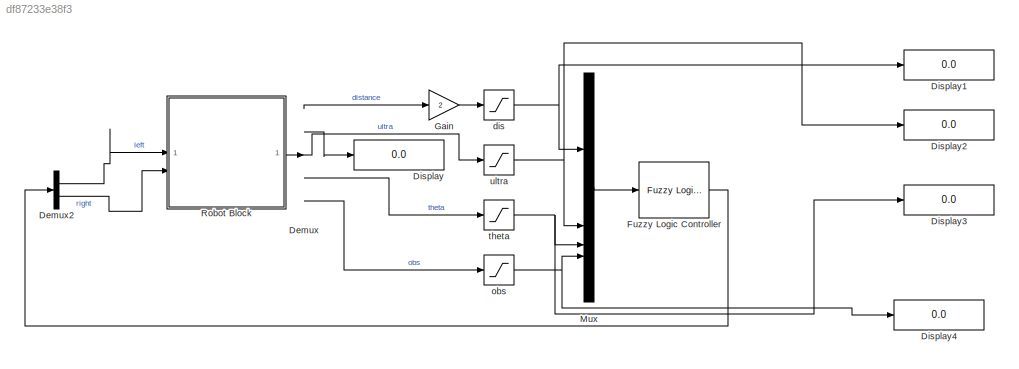
MODEL slx_df87233e38f3
KIND model
CONFIG AbsTol = auto
CONFIG EnableMultiTasking = off
CONFIG FixedStep = 0.050
CONFIG MaxStep = auto
CONFIG MinStep = auto
CONFIG RelTol = 1e-3
CONFIG SampleTimeConstraint = Unconstrained
CONFIG SolverName = ode45
CONFIG StartTime = 0.0
CONFIG StopTime = inf
WORKSPACE source: mxarray member
WORKSPACE Sig: Simulink.Signal (value not decoded)
WORKSPACE Var = 0
BLOCK [Demux] Demux
  Outputs = 5
BLOCK [Demux] Demux2
  Outputs = 2
BLOCK [Display] Display
  Decimation = 1
BLOCK [Display] Display1
  Decimation = 1
BLOCK [Display] Display2
  Decimation = 1
BLOCK [Display] Display3
  Decimation = 1
BLOCK [Display] Display4
  Decimation = 1
BLOCK [Reference] Fuzzy Logic Controller  REF=fuzblock/Fuzzy Logic   (lib defined in mdl_858b3b3e7478)
Controller
  SourceBlock = fuzblock/Fuzzy Logic \nController
  SourceType = Fuzzy Inference System
BLOCK [Gain] Gain
  Gain = 2
BLOCK [Mux] Mux
  DisplayOption = bar
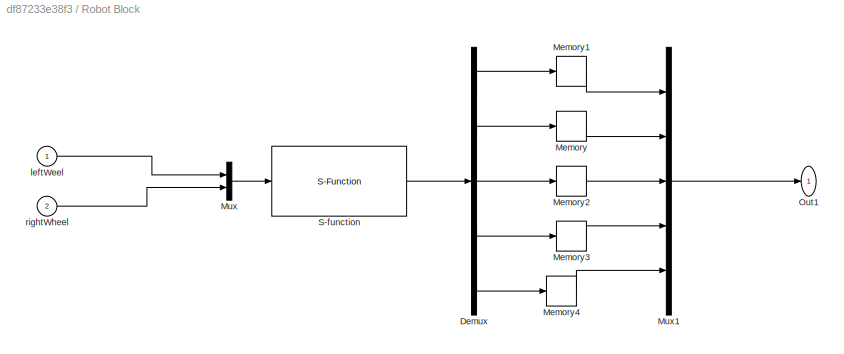
BLOCK [SubSystem] Robot Block
BLOCK [Demux] Robot Block/Demux
  Outputs = 5
BLOCK [Memory] Robot Block/Memory
BLOCK [Memory] Robot Block/Memory1
  InitialCondition = 1000
BLOCK [Memory] Robot Block/Memory2
BLOCK [Memory] Robot Block/Memory3
BLOCK [Memory] Robot Block/Memory4
BLOCK [Mux] Robot Block/Mux
  DisplayOption = bar
  Inputs = 2
BLOCK [Mux] Robot Block/Mux1
  DisplayOption = bar
  Inputs = 5
BLOCK [Outport] Robot Block/Out1
  IconDisplay = Port number and signal name
BLOCK [S-Function] Robot Block/S-function
  EnableBusSupport = off
  FunctionName = roboanimate_org
  Parameters = stObj
  SFcnIsStateOwnerBlock = off
  SFunctionDeploymentMode = off
BLOCK [Inport] Robot Block/leftWeel
BLOCK [Inport] Robot Block/rightWheel
  Port = 2
BLOCK [Saturate] dis
  LowerLimit = 0
  UpperLimit = 20
BLOCK [Saturate] obs
  LowerLimit = -9
  UpperLimit = 5
BLOCK [Saturate] theta
  LowerLimit = -180
  UpperLimit = 180
BLOCK [Saturate] ultra
  LowerLimit = 0
  UpperLimit = 25
LINE Demux2:1 -> Robot Block:1
LINE Demux2:2 -> Robot Block:2
LINE Demux:1 -> Gain:1
LINE Demux:2 -> Display:1
LINE Demux:3 -> ultra:1
LINE Demux:4 -> theta:1
LINE Demux:5 -> obs:1
LINE Fuzzy Logic Controller:1 -> Demux2:1
LINE Gain:1 -> dis:1
LINE Mux:1 -> Fuzzy Logic Controller:1
LINE Robot Block/Demux:1 -> Robot Block/Memory1:1
LINE Robot Block/Demux:2 -> Robot Block/Memory:1
LINE Robot Block/Demux:3 -> Robot Block/Memory2:1
LINE Robot Block/Demux:4 -> Robot Block/Memory3:1
LINE Robot Block/Demux:5 -> Robot Block/Memory4:1
LINE Robot Block/Memory1:1 -> Robot Block/Mux1:1
LINE Robot Block/Memory2:1 -> Robot Block/Mux1:3
LINE Robot Block/Memory3:1 -> Robot Block/Mux1:4
LINE Robot Block/Memory4:1 -> Robot Block/Mux1:5
LINE Robot Block/Memory:1 -> Robot Block/Mux1:2
LINE Robot Block/Mux1:1 -> Robot Block/Out1:1
LINE Robot Block/Mux:1 -> Robot Block/S-function:1
LINE Robot Block/S-function:1 -> Robot Block/Demux:1
LINE Robot Block/leftWeel:1 -> Robot Block/Mux:1
LINE Robot Block/rightWheel:1 -> Robot Block/Mux:2
LINE Robot Block:1 -> Demux:1
NET dis:1 -> Display1:1, Mux:1
NET obs:1 -> Display4:1, Mux:4
NET theta:1 -> Display3:1, Mux:3
NET ultra:1 -> Display2:1, Mux:2
note: NET lines group one-source signal fan-out (src -> all destinations, sorted); 1:1 wires keep LINE
